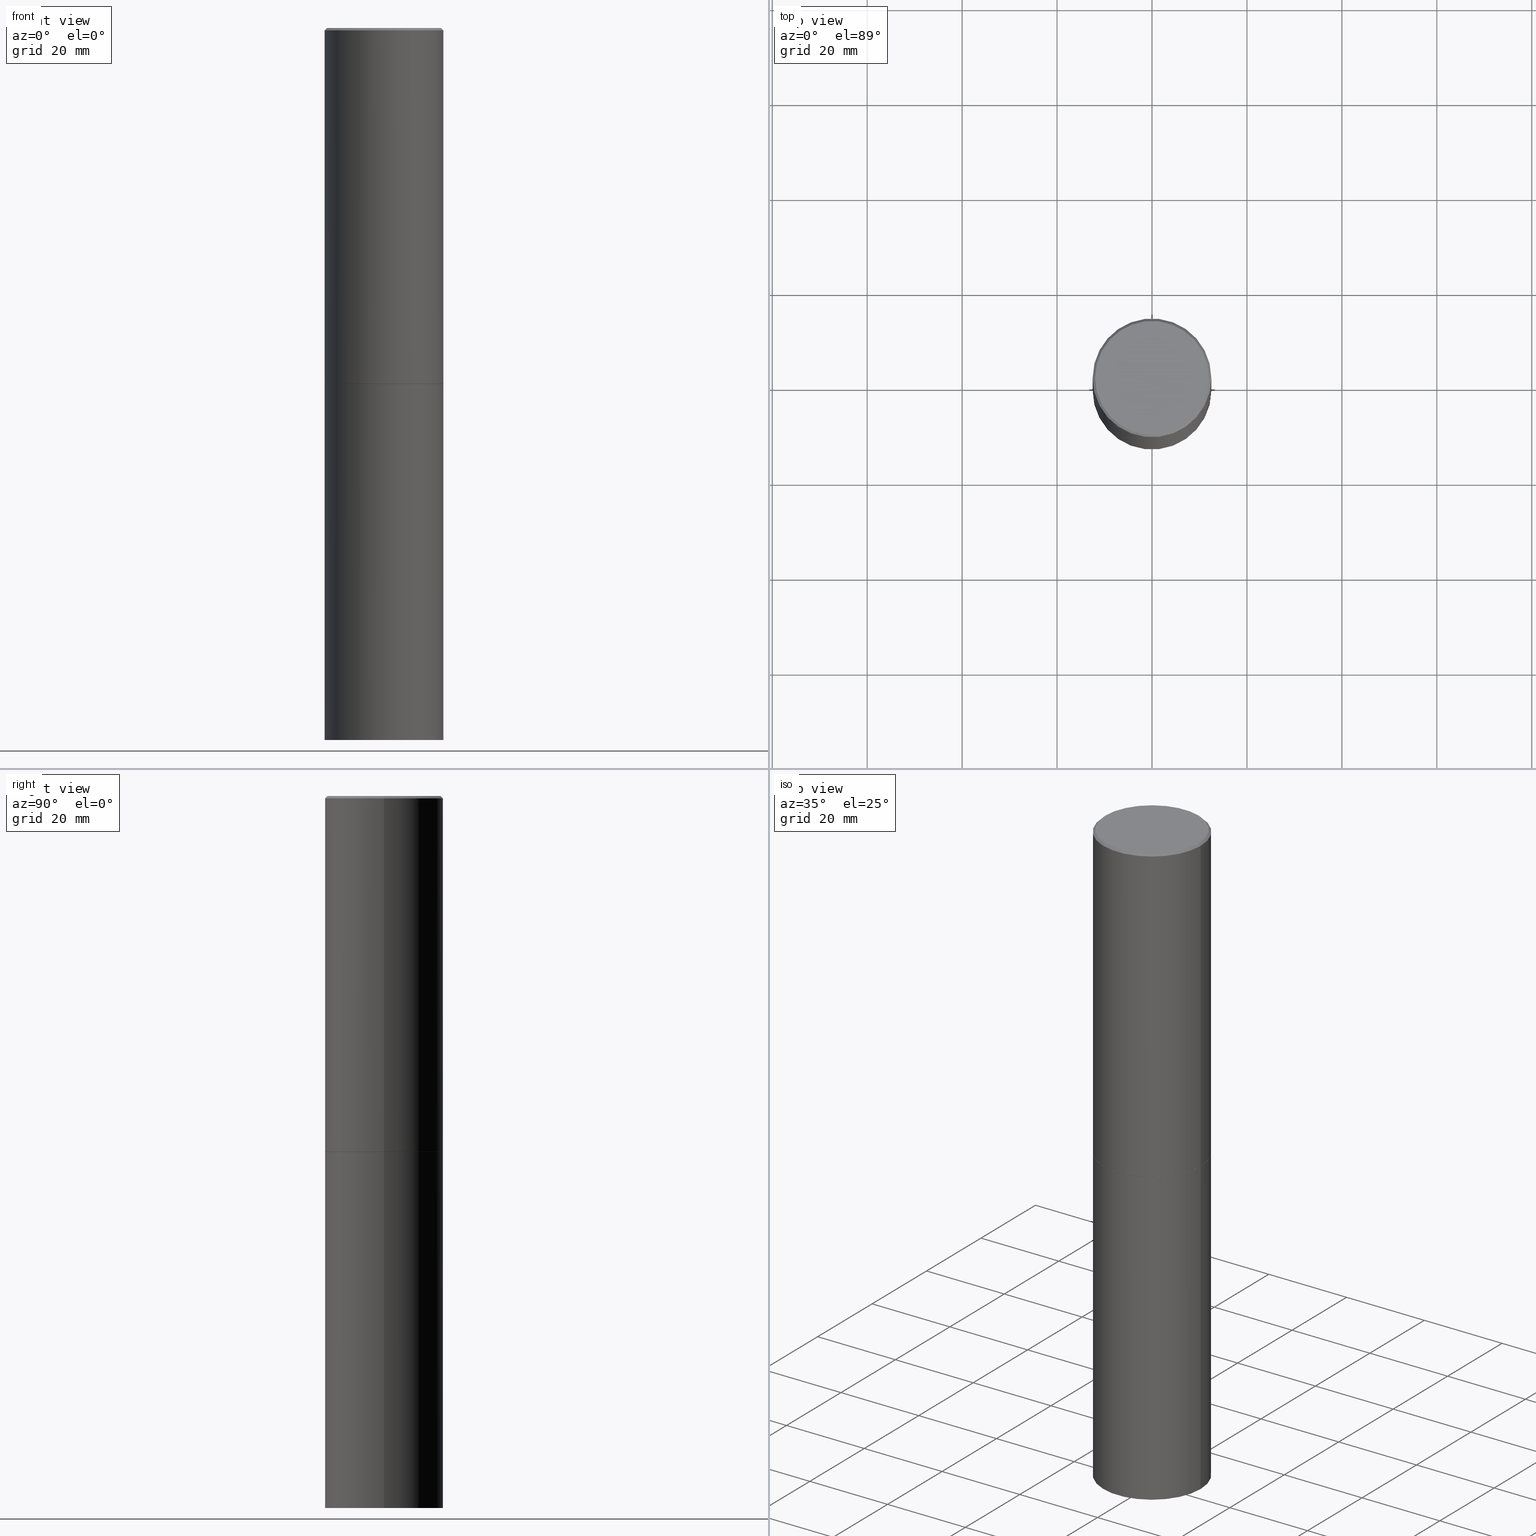
[diagram: canonical four-view strip — front | top / right | iso, engineering-drawing reading convention]
A machine part, canonical four-view strip (front | top / right | iso — engineering-drawing reading convention). The complete STEP part file that produces these views, byte-faithful:
ISO-10303-21;
HEADER;
FILE_DESCRIPTION (( 'STEP AP203' ),
    '1' );
FILE_NAME ('49413.STEP',
    '2024-02-28T19:42:26',
    ( '' ),
    ( '' ),
    'SwSTEP 2.0',
    'SolidWorks 2023',
    '' );
FILE_SCHEMA (( 'CONFIG_CONTROL_DESIGN' ));
ENDSEC;

DATA;
#1 = CARTESIAN_POINT ( 'NONE',  ( 0.4911499999999999755, -1.373897906834776478E-14, -2.952700000000000546 ) ) ;
#2 = AXIS2_PLACEMENT_3D ( 'NONE', #58, #278, #134 ) ;
#3 = DIRECTION ( 'NONE',  ( -2.445468806185136597E-29, 3.491481338843145583E-15, 1.000000000000000000 ) ) ;
#4 = EDGE_CURVE ( 'NONE', #128, #118, #135, .T. ) ;
#5 = DIRECTION ( 'NONE',  ( -2.445468806185136597E-29, 3.491481338843145583E-15, 1.000000000000000000 ) ) ;
#6 = VECTOR ( 'NONE', #357, 39.37007874015748143 ) ;
#7 = AXIS2_PLACEMENT_3D ( 'NONE', #48, #241, #352 ) ;
#8 = APPLICATION_CONTEXT ( 'configuration controlled 3d designs of mechanical parts and assemblies' ) ;
#9 = DIRECTION ( 'NONE',  ( 1.000000000000000000, -6.982962677686264344E-15, 0.000000000000000000 ) ) ;
#10 = PERSON_AND_ORGANIZATION ( #182, #22 ) ;
#11 = CC_DESIGN_DATE_AND_TIME_ASSIGNMENT ( #365, #201, ( #309 ) ) ;
#12 = ORIENTED_EDGE ( 'NONE', *, *, #25, .F. ) ;
#13 = DIRECTION ( 'NONE',  ( -2.445468806185136597E-29, 3.491481338843145583E-15, 1.000000000000000000 ) ) ;
#14 = COORDINATED_UNIVERSAL_TIME_OFFSET ( 5, 0, .BEHIND. ) ;
#15 = VECTOR ( 'NONE', #223, 39.37007874015748143 ) ;
#16 = DIRECTION ( 'NONE',  ( 1.000000000000000000, -6.982962677686265922E-15, 4.876176775795935793E-29 ) ) ;
#17 = PERSON_AND_ORGANIZATION_ROLE ( 'classification_officer' ) ;
#18 = CYLINDRICAL_SURFACE ( 'NONE', #160, 0.4921499999999999764 ) ;
#19 = CC_DESIGN_PERSON_AND_ORGANIZATION_ASSIGNMENT ( #229, #60, ( #309 ) ) ;
#20 =( CONVERSION_BASED_UNIT ( 'INCH', #290 ) LENGTH_UNIT ( ) NAMED_UNIT ( #154 ) );
#21 = CARTESIAN_POINT ( 'NONE',  ( -0.4921499999999999764, -1.690881473276754954E-15, -2.951700000000000212 ) ) ;
#22 = ORGANIZATION ( 'UNSPECIFIED', 'UNSPECIFIED', '' ) ;
#23 = ORIENTED_EDGE ( 'NONE', *, *, #25, .T. ) ;
#24 = FACE_OUTER_BOUND ( 'NONE', #151, .T. ) ;
#25 = EDGE_CURVE ( 'NONE', #348, #356, #341, .T. ) ;
#26 = PERSON_AND_ORGANIZATION ( #182, #22 ) ;
#27 = FACE_OUTER_BOUND ( 'NONE', #103, .T. ) ;
#28 = VERTEX_POINT ( 'NONE', #240 ) ;
#29 = COORDINATED_UNIVERSAL_TIME_OFFSET ( 5, 0, .BEHIND. ) ;
#30 = CARTESIAN_POINT ( 'NONE',  ( 1.444171603492632270E-28, -2.061894304653819197E-14, -5.905499999999999972 ) ) ;
#31 = AXIS2_PLACEMENT_3D ( 'NONE', #313, #310, #137 ) ;
#32 = PERSON_AND_ORGANIZATION ( #182, #22 ) ;
#33 = EDGE_CURVE ( 'NONE', #70, #257, #351, .T. ) ;
#34 = FACE_OUTER_BOUND ( 'NONE', #47, .T. ) ;
#35 = CONICAL_SURFACE ( 'NONE', #83, 0.4921499999999996988, 0.7853981633974469467 ) ;
#36 = AXIS2_PLACEMENT_3D ( 'NONE', #44, #90, #41 ) ;
#37 = CARTESIAN_POINT ( 'NONE',  ( 7.218290275216666916E-29, -1.030580546786331359E-14, -2.951700000000000212 ) ) ;
#38 = ORIENTED_EDGE ( 'NONE', *, *, #4, .F. ) ;
#39 = FACE_OUTER_BOUND ( 'NONE', #295, .T. ) ;
#40 = COORDINATED_UNIVERSAL_TIME_OFFSET ( 5, 0, .BEHIND. ) ;
#41 = DIRECTION ( 'NONE',  ( 1.000000000000000000, -6.982962677686265922E-15, 4.876006802227162976E-29 ) ) ;
#42 = CC_DESIGN_SECURITY_CLASSIFICATION ( #358, ( #174 ) ) ;
#43 = ORIENTED_EDGE ( 'NONE', *, *, #287, .T. ) ;
#44 = CARTESIAN_POINT ( 'NONE',  ( -2.087702828670439639E-46, 2.980686340760894400E-32, 8.537024980200822558E-18 ) ) ;
#45 = EDGE_LOOP ( 'NONE', ( #189, #303 ) ) ;
#46 = DIRECTION ( 'NONE',  ( -1.000000000000000000, 6.982962677686265922E-15, 0.000000000000000000 ) ) ;
#47 = EDGE_LOOP ( 'NONE', ( #316, #274, #343, #166 ) ) ;
#48 = CARTESIAN_POINT ( 'NONE',  ( 7.220735744022853640E-29, -1.030929694920215659E-14, -2.952700000000000546 ) ) ;
#49 = DIRECTION ( 'NONE',  ( -2.438088387897960049E-29, 3.491481338843145188E-15, 1.000000000000000000 ) ) ;
#50 = CIRCLE ( 'NONE', #140, 0.4921499999999999764 ) ;
#51 = EDGE_CURVE ( 'NONE', #28, #356, #55, .T. ) ;
#52 = VECTOR ( 'NONE', #91, 39.37007874015748143 ) ;
#53 = ORIENTED_EDGE ( 'NONE', *, *, #282, .T. ) ;
#54 = EDGE_CURVE ( 'NONE', #163, #348, #326, .T. ) ;
#55 = LINE ( 'NONE', #159, #283 ) ;
#56 = CIRCLE ( 'NONE', #98, 0.4721499999999996255 ) ;
#57 = MECHANICAL_CONTEXT ( 'NONE', #318, 'mechanical' ) ;
#58 = CARTESIAN_POINT ( 'NONE',  ( 7.220735744022853640E-29, -1.030929694920215659E-14, -2.952700000000000546 ) ) ;
#59 = CARTESIAN_POINT ( 'NONE',  ( 4.890937612370299433E-31, -6.982962677686328587E-17, -0.02000000000000010797 ) ) ;
#60 = PERSON_AND_ORGANIZATION_ROLE ( 'creator' ) ;
#61 = CYLINDRICAL_SURFACE ( 'NONE', #31, 0.4921499999999998098 ) ;
#62 = CARTESIAN_POINT ( 'NONE',  ( -0.4721499999999996255, 3.331920641657999252E-15, 8.537024980177643606E-18 ) ) ;
#63 = ADVANCED_FACE ( 'NONE', ( #24 ), #18, .T. ) ;
#64 = DIRECTION ( 'NONE',  ( -1.000000000000000000, 6.982962677686265922E-15, -4.876176775795935793E-29 ) ) ;
#65 = APPROVAL_PERSON_ORGANIZATION ( #270, #193, #141 ) ;
#66 = DIRECTION ( 'NONE',  ( 2.445468806185136597E-29, -3.491481338843145583E-15, -1.000000000000000000 ) ) ;
#67 = ORIENTED_EDGE ( 'NONE', *, *, #87, .T. ) ;
#68 = DIRECTION ( 'NONE',  ( 1.000000000000000000, -6.982962677686265922E-15, 0.000000000000000000 ) ) ;
#69 = CARTESIAN_POINT ( 'NONE',  ( -0.4911499999999999755, -6.819466302516424705E-15, -2.952700000000000546 ) ) ;
#70 = VERTEX_POINT ( 'NONE', #1 ) ;
#71 = ADVANCED_FACE ( 'NONE', ( #34 ), #61, .T. ) ;
#72 = CONICAL_SURFACE ( 'NONE', #170, 0.4911499999999999755, 0.7853981633972775267 ) ;
#73 = EDGE_CURVE ( 'NONE', #347, #28, #56, .T. ) ;
#74 = VERTEX_POINT ( 'NONE', #361 ) ;
#75 = EDGE_CURVE ( 'NONE', #74, #102, #50, .T. ) ;
#76 = AXIS2_PLACEMENT_3D ( 'NONE', #215, #328, #186 ) ;
#77 = EDGE_LOOP ( 'NONE', ( #246, #335, #93, #101 ) ) ;
#78 = ORIENTED_EDGE ( 'NONE', *, *, #117, .T. ) ;
#79 = CARTESIAN_POINT ( 'NONE',  ( 7.220735744022852519E-29, -1.030929694920215502E-14, -2.952700000000000102 ) ) ;
#80 = EDGE_LOOP ( 'NONE', ( #78, #127 ) ) ;
#81 = EDGE_CURVE ( 'NONE', #356, #348, #194, .T. ) ;
#82 = FACE_OUTER_BOUND ( 'NONE', #213, .T. ) ;
#83 = AXIS2_PLACEMENT_3D ( 'NONE', #86, #66, #46 ) ;
#84 = DIRECTION ( 'NONE',  ( 1.000000000000000000, 0.000000000000000000, 0.000000000000000000 ) ) ;
#85 = DIRECTION ( 'NONE',  ( 2.445468806185136597E-29, -3.491481338843145583E-15, -1.000000000000000000 ) ) ;
#86 = CARTESIAN_POINT ( 'NONE',  ( 4.890937612370299433E-31, -6.982962677686328587E-17, -0.02000000000000010797 ) ) ;
#87 = EDGE_CURVE ( 'NONE', #102, #128, #256, .T. ) ;
#88 = PRODUCT ( '49413', '49413', '', ( #57 ) ) ;
#89 = PERSON_AND_ORGANIZATION_ROLE ( 'creator' ) ;
#90 = DIRECTION ( 'NONE',  ( -2.445468806185136597E-29, 3.491481338843145583E-15, 1.000000000000000000 ) ) ;
#91 = DIRECTION ( 'NONE',  ( -0.7071067811864267805, 7.493145998869918709E-15, 0.7071067811866682540 ) ) ;
#92 = DIRECTION ( 'NONE',  ( 1.000000000000000000, -6.982962677686265922E-15, 4.876176775795935793E-29 ) ) ;
#93 = ORIENTED_EDGE ( 'NONE', *, *, #33, .T. ) ;
#94 = DIRECTION ( 'NONE',  ( -0.7071067811865465735, 2.468850131082246805E-15, -0.7071067811865484609 ) ) ;
#95 = CARTESIAN_POINT ( 'NONE',  ( 3.436665081823367957E-15, 0.4921499999999896513, -2.952700000000001435 ) ) ;
#96 = FACE_OUTER_BOUND ( 'NONE', #144, .T. ) ;
#97 = APPROVAL_ROLE ( '' ) ;
#98 = AXIS2_PLACEMENT_3D ( 'NONE', #336, #284, #131 ) ;
#99 = CIRCLE ( 'NONE', #36, 0.4721499999999996255 ) ;
#100 = CONICAL_SURFACE ( 'NONE', #114, 0.4921499999999996988, 0.7853981633974469467 ) ;
#101 = ORIENTED_EDGE ( 'NONE', *, *, #279, .F. ) ;
#102 = VERTEX_POINT ( 'NONE', #339 ) ;
#103 = EDGE_LOOP ( 'NONE', ( #116, #329, #177, #208 ) ) ;
#104 = DIRECTION ( 'NONE',  ( 1.000000000000000000, -6.982962677686265922E-15, 4.876176775795935793E-29 ) ) ;
#105 = DIRECTION ( 'NONE',  ( -2.445468806185136597E-29, 3.491481338843145583E-15, 1.000000000000000000 ) ) ;
#106 = VECTOR ( 'NONE', #94, 39.37007874015748143 ) ;
#107 = ORIENTED_EDGE ( 'NONE', *, *, #133, .F. ) ;
#108 = APPROVAL ( #238, 'UNSPECIFIED' ) ;
#109 = DIRECTION ( 'NONE',  ( -1.000000000000000000, 6.982962677686265922E-15, -4.876176775795935793E-29 ) ) ;
#110 = CLOSED_SHELL ( 'NONE', ( #305, #71, #125, #222, #299, #263, #165, #321 ) ) ;
#111 = LOCAL_TIME ( 14, 42, 26.00000000000000000, #211 ) ;
#112 = APPROVAL_DATE_TIME ( #258, #193 ) ;
#113 = AXIS2_PLACEMENT_3D ( 'NONE', #252, #363, #308 ) ;
#114 = AXIS2_PLACEMENT_3D ( 'NONE', #226, #85, #197 ) ;
#115 = ORIENTED_EDGE ( 'NONE', *, *, #33, .F. ) ;
#116 = ORIENTED_EDGE ( 'NONE', *, *, #255, .F. ) ;
#117 = EDGE_CURVE ( 'NONE', #118, #128, #267, .T. ) ;
#118 = VERTEX_POINT ( 'NONE', #164 ) ;
#119 = ORIENTED_EDGE ( 'NONE', *, *, #206, .T. ) ;
#120 = CC_DESIGN_PERSON_AND_ORGANIZATION_ASSIGNMENT ( #203, #89, ( #174 ) ) ;
#121 = CARTESIAN_POINT ( 'NONE',  ( 0.000000000000000000, 0.000000000000000000, 0.000000000000000000 ) ) ;
#122 = FACE_OUTER_BOUND ( 'NONE', #261, .T. ) ;
#123 = DATE_TIME_ROLE ( 'classification_date' ) ;
#124 = LOCAL_TIME ( 14, 42, 26.00000000000000000, #280 ) ;
#125 = ADVANCED_FACE ( 'NONE', ( #27 ), #35, .T. ) ;
#126 = CARTESIAN_POINT ( 'NONE',  ( 0.4921499999999999764, -3.436665081823295777E-15, 2.399810400207969603E-29 ) ) ;
#127 = ORIENTED_EDGE ( 'NONE', *, *, #4, .T. ) ;
#128 = VERTEX_POINT ( 'NONE', #319 ) ;
#129 = CIRCLE ( 'NONE', #205, 0.4921499999999999764 ) ;
#130 = EDGE_CURVE ( 'NONE', #347, #348, #175, .T. ) ;
#131 = DIRECTION ( 'NONE',  ( 1.000000000000000000, -6.982962677686265922E-15, 4.876006802227162976E-29 ) ) ;
#132 = CALENDAR_DATE ( 2024, 28, 2 ) ;
#133 = EDGE_CURVE ( 'NONE', #257, #163, #331, .T. ) ;
#134 = DIRECTION ( 'NONE',  ( 1.000000000000000000, -6.982962677686264344E-15, 0.000000000000000000 ) ) ;
#135 = CIRCLE ( 'NONE', #209, 0.4921499999999999764 ) ;
#136 = CARTESIAN_POINT ( 'NONE',  ( 0.000000000000000000, 0.000000000000000000, 0.000000000000000000 ) ) ;
#137 = DIRECTION ( 'NONE',  ( 1.000000000000000000, -6.982962677686265922E-15, 4.876176775795935793E-29 ) ) ;
#138 = EDGE_CURVE ( 'NONE', #257, #356, #291, .T. ) ;
#139 = CARTESIAN_POINT ( 'NONE',  ( -0.4911499999999999755, -6.814167848168202303E-15, -2.952700000000000546 ) ) ;
#140 = AXIS2_PLACEMENT_3D ( 'NONE', #30, #359, #227 ) ;
#141 = APPROVAL_ROLE ( '' ) ;
#142 = PERSON_AND_ORGANIZATION_ROLE ( 'design_supplier' ) ;
#143 = ORIENTED_EDGE ( 'NONE', *, *, #117, .F. ) ;
#144 = EDGE_LOOP ( 'NONE', ( #190, #202, #292, #12 ) ) ;
#145 = CC_DESIGN_PERSON_AND_ORGANIZATION_ASSIGNMENT ( #350, #17, ( #358 ) ) ;
#146 = DIRECTION ( 'NONE',  ( 1.000000000000000000, -6.982962677686264344E-15, 0.000000000000000000 ) ) ;
#147 = DIRECTION ( 'NONE',  ( 0.7071067811865465735, -7.319954787623252890E-15, -0.7071067811865484609 ) ) ;
#148 = CARTESIAN_POINT ( 'NONE',  ( -0.4921499999999998098, 3.496936074043331714E-15, -2.420853904668950949E-29 ) ) ;
#149 = ORIENTED_EDGE ( 'NONE', *, *, #282, .F. ) ;
#150 =( NAMED_UNIT ( * ) PLANE_ANGLE_UNIT ( ) SI_UNIT ( $, .RADIAN. ) );
#151 = EDGE_LOOP ( 'NONE', ( #243, #43, #53, #38 ) ) ;
#152 = DIRECTION ( 'NONE',  ( -2.445468806185136597E-29, 3.491481338843145583E-15, 1.000000000000000000 ) ) ;
#153 = DIRECTION ( 'NONE',  ( -2.445468806185136597E-29, 3.491481338843145583E-15, 1.000000000000000000 ) ) ;
#154 = DIMENSIONAL_EXPONENTS ( 1.000000000000000000, 0.000000000000000000, 0.000000000000000000, 0.000000000000000000, 0.000000000000000000, 0.000000000000000000, 0.000000000000000000 ) ;
#155 = MANIFOLD_SOLID_BREP ( 'Body-Move/Copy2[2]', #110 ) ;
#156 = ADVANCED_BREP_SHAPE_REPRESENTATION ( '49413', ( #158, #155, #181 ), #332 ) ;
#157 = DATE_AND_TIME ( #324, #111 ) ;
#158 = MANIFOLD_SOLID_BREP ( 'Body-Move/Copy2[1]', #312 ) ;
#159 = CARTESIAN_POINT ( 'NONE',  ( 0.4921499999999996988, -3.446223716380120377E-15, -0.02000000000000010797 ) ) ;
#160 = AXIS2_PLACEMENT_3D ( 'NONE', #216, #330, #304 ) ;
#161 = ORIENTED_EDGE ( 'NONE', *, *, #130, .T. ) ;
#162 = AXIS2_PLACEMENT_3D ( 'NONE', #171, #153, #146 ) ;
#163 = VERTEX_POINT ( 'NONE', #21 ) ;
#164 = CARTESIAN_POINT ( 'NONE',  ( 0.4921499999999999764, -1.374596203102545079E-14, -2.952700000000000102 ) ) ;
#165 = ADVANCED_FACE ( 'NONE', ( #122 ), #239, .F. ) ;
#166 = ORIENTED_EDGE ( 'NONE', *, *, #138, .F. ) ;
#167 = APPLICATION_PROTOCOL_DEFINITION ( 'international standard', 'config_control_design', 1994, #8 ) ;
#168 = CARTESIAN_POINT ( 'NONE',  ( -0.4921499999999996988, 3.366835455046430506E-15, -0.02000000000000010797 ) ) ;
#169 = AXIS2_PLACEMENT_3D ( 'NONE', #37, #3, #176 ) ;
#170 = AXIS2_PLACEMENT_3D ( 'NONE', #327, #217, #9 ) ;
#171 = CARTESIAN_POINT ( 'NONE',  ( 7.220735744022853640E-29, -1.030929694920215659E-14, -2.952700000000000546 ) ) ;
#172 = CC_DESIGN_PERSON_AND_ORGANIZATION_ASSIGNMENT ( #315, #142, ( #174 ) ) ;
#173 = ORIENTED_EDGE ( 'NONE', *, *, #287, .F. ) ;
#174 = PRODUCT_DEFINITION_FORMATION_WITH_SPECIFIED_SOURCE ( 'ANY', '', #88, .NOT_KNOWN. ) ;
#175 = LINE ( 'NONE', #344, #106 ) ;
#176 = DIRECTION ( 'NONE',  ( 1.000000000000000000, -6.982962677686265922E-15, 0.000000000000000000 ) ) ;
#177 = ORIENTED_EDGE ( 'NONE', *, *, #81, .T. ) ;
#178 =( LENGTH_UNIT ( ) NAMED_UNIT ( * ) SI_UNIT ( $, .METRE. ) );
#179 = DIRECTION ( 'NONE',  ( -2.445468806185136597E-29, 3.491481338843145583E-15, 1.000000000000000000 ) ) ;
#180 = AXIS2_PLACEMENT_3D ( 'NONE', #207, #152, #273 ) ;
#181 = AXIS2_PLACEMENT_3D ( 'NONE', #136, #199, #84 ) ;
#182 = PERSON ( 'UNSPECIFIED', 'UNSPECIFIED', 'UNSPECIFIED', ('UNSPECIFIED'), ('UNSPECIFIED'), ('UNSPECIFIED') ) ;
#183 = DIRECTION ( 'NONE',  ( 1.000000000000000000, -6.982962677686265922E-15, 0.000000000000000000 ) ) ;
#184 = ORIENTED_EDGE ( 'NONE', *, *, #235, .F. ) ;
#185 = PRODUCT_RELATED_PRODUCT_CATEGORY ( 'detail', '', ( #88 ) ) ;
#186 = DIRECTION ( 'NONE',  ( 1.000000000000000000, -6.982962677686265922E-15, 0.000000000000000000 ) ) ;
#187 = CARTESIAN_POINT ( 'NONE',  ( 7.220735744022853640E-29, -1.030929694920215659E-14, -2.952700000000000546 ) ) ;
#188 = PLANE ( 'NONE',  #317 ) ;
#189 = ORIENTED_EDGE ( 'NONE', *, *, #73, .T. ) ;
#190 = ORIENTED_EDGE ( 'NONE', *, *, #54, .F. ) ;
#191 = APPLICATION_PROTOCOL_DEFINITION ( 'international standard', 'config_control_design', 1994, #318 ) ;
#192 = ORIENTED_EDGE ( 'NONE', *, *, #275, .T. ) ;
#193 = APPROVAL ( #285, 'UNSPECIFIED' ) ;
#194 = CIRCLE ( 'NONE', #219, 0.4921499999999996988 ) ;
#195 = CIRCLE ( 'NONE', #76, 0.4921499999999999764 ) ;
#196 = DIRECTION ( 'NONE',  ( -1.000000000000000000, 6.982962677686265922E-15, -4.876176775795935793E-29 ) ) ;
#197 = DIRECTION ( 'NONE',  ( -1.000000000000000000, 6.982962677686265922E-15, 0.000000000000000000 ) ) ;
#198 = CARTESIAN_POINT ( 'NONE',  ( 3.436665081823440533E-15, 0.4921499999999793262, -5.905500000000001748 ) ) ;
#199 = DIRECTION ( 'NONE',  ( 0.000000000000000000, 0.000000000000000000, 1.000000000000000000 ) ) ;
#200 = LOCAL_TIME ( 14, 42, 26.00000000000000000, #14 ) ;
#201 = DATE_TIME_ROLE ( 'creation_date' ) ;
#202 = ORIENTED_EDGE ( 'NONE', *, *, #279, .T. ) ;
#203 = PERSON_AND_ORGANIZATION ( #182, #22 ) ;
#204 = CYLINDRICAL_SURFACE ( 'NONE', #323, 0.4921499999999999764 ) ;
#205 = AXIS2_PLACEMENT_3D ( 'NONE', #296, #13, #68 ) ;
#206 = EDGE_CURVE ( 'NONE', #70, #325, #337, .T. ) ;
#207 = CARTESIAN_POINT ( 'NONE',  ( 4.890937612370299433E-31, -6.982962677686328587E-17, -0.02000000000000010797 ) ) ;
#208 = ORIENTED_EDGE ( 'NONE', *, *, #130, .F. ) ;
#209 = AXIS2_PLACEMENT_3D ( 'NONE', #79, #5, #183 ) ;
#210 = CC_DESIGN_APPROVAL ( #108, ( #358 ) ) ;
#211 = COORDINATED_UNIVERSAL_TIME_OFFSET ( 5, 0, .BEHIND. ) ;
#212 = APPROVAL_DATE_TIME ( #157, #108 ) ;
#213 = EDGE_LOOP ( 'NONE', ( #307, #173 ) ) ;
#214 = FACE_OUTER_BOUND ( 'NONE', #45, .T. ) ;
#215 = CARTESIAN_POINT ( 'NONE',  ( 1.444171603492632270E-28, -2.061894304653819197E-14, -5.905499999999999972 ) ) ;
#216 = CARTESIAN_POINT ( 'NONE',  ( 0.000000000000000000, 0.000000000000000000, 0.000000000000000000 ) ) ;
#217 = DIRECTION ( 'NONE',  ( -2.445468806185136597E-29, 3.491481338843145583E-15, 1.000000000000000000 ) ) ;
#218 = CARTESIAN_POINT ( 'NONE',  ( 0.4921499999999999764, -1.374247054968660936E-14, -2.951700000000000212 ) ) ;
#219 = AXIS2_PLACEMENT_3D ( 'NONE', #59, #105, #231 ) ;
#220 = CC_DESIGN_APPROVAL ( #360, ( #309 ) ) ;
#221 = DIRECTION ( 'NONE',  ( 2.438088387897960049E-29, -3.491481338843145188E-15, -1.000000000000000000 ) ) ;
#222 = ADVANCED_FACE ( 'NONE', ( #250 ), #100, .T. ) ;
#223 = DIRECTION ( 'NONE',  ( -2.445468806185136877E-29, 3.491481338843145188E-15, 1.000000000000000000 ) ) ;
#224 = ORIENTED_EDGE ( 'NONE', *, *, #75, .T. ) ;
#225 = APPROVAL_ROLE ( '' ) ;
#226 = CARTESIAN_POINT ( 'NONE',  ( 4.890937612370299433E-31, -6.982962677686328587E-17, -0.02000000000000010797 ) ) ;
#227 = DIRECTION ( 'NONE',  ( 1.000000000000000000, -6.982962677686265922E-15, 0.000000000000000000 ) ) ;
#228 = CIRCLE ( 'NONE', #162, 0.4911499999999999755 ) ;
#229 = PERSON_AND_ORGANIZATION ( #182, #22 ) ;
#230 = DIRECTION ( 'NONE',  ( 2.438088387897960049E-29, -3.491481338843145188E-15, -1.000000000000000000 ) ) ;
#231 = DIRECTION ( 'NONE',  ( 1.000000000000000000, -6.982962677686265922E-15, 0.000000000000000000 ) ) ;
#232 =( NAMED_UNIT ( * ) SI_UNIT ( $, .STERADIAN. ) SOLID_ANGLE_UNIT ( ) );
#233 = VECTOR ( 'NONE', #298, 39.37007874015748143 ) ;
#234 = ADVANCED_FACE ( 'NONE', ( #39 ), #204, .T. ) ;
#235 = EDGE_CURVE ( 'NONE', #325, #70, #228, .T. ) ;
#236 = CARTESIAN_POINT ( 'NONE',  ( 0.4921499999999998098, -3.436665081823294593E-15, 2.399810400207968762E-29 ) ) ;
#237 = ADVANCED_FACE ( 'NONE', ( #333 ), #188, .F. ) ;
#238 = APPROVAL_STATUS ( 'not_yet_approved' ) ;
#239 = PLANE ( 'NONE',  #260 ) ;
#240 = CARTESIAN_POINT ( 'NONE',  ( 0.4721499999999996255, -3.342703923013973396E-15, 8.537024980224040028E-18 ) ) ;
#241 = DIRECTION ( 'NONE',  ( -2.445468806185136597E-29, 3.491481338843145583E-15, 1.000000000000000000 ) ) ;
#242 = CC_DESIGN_DATE_AND_TIME_ASSIGNMENT ( #264, #123, ( #358 ) ) ;
#243 = ORIENTED_EDGE ( 'NONE', *, *, #87, .F. ) ;
#244 = ORIENTED_EDGE ( 'NONE', *, *, #51, .F. ) ;
#245 = AXIS2_PLACEMENT_3D ( 'NONE', #311, #364, #109 ) ;
#246 = ORIENTED_EDGE ( 'NONE', *, *, #275, .F. ) ;
#247 = ORIENTED_EDGE ( 'NONE', *, *, #206, .F. ) ;
#248 = APPROVAL_STATUS ( 'not_yet_approved' ) ;
#249 = DATE_AND_TIME ( #132, #289 ) ;
#250 = FACE_OUTER_BOUND ( 'NONE', #294, .T. ) ;
#251 = VECTOR ( 'NONE', #271, 39.37007874015748143 ) ;
#252 = CARTESIAN_POINT ( 'NONE',  ( 7.220735744022852519E-29, -1.030929694920215502E-14, -2.952700000000000102 ) ) ;
#253 = CALENDAR_DATE ( 2024, 28, 2 ) ;
#254 = DESIGN_CONTEXT ( 'detailed design', #8, 'design' ) ;
#255 = EDGE_CURVE ( 'NONE', #28, #347, #99, .T. ) ;
#256 = LINE ( 'NONE', #366, #15 ) ;
#257 = VERTEX_POINT ( 'NONE', #218 ) ;
#258 = DATE_AND_TIME ( #340, #262 ) ;
#259 = DIRECTION ( 'NONE',  ( -2.445468806185136597E-29, 3.491481338843145583E-15, 1.000000000000000000 ) ) ;
#260 = AXIS2_PLACEMENT_3D ( 'NONE', #187, #49, #104 ) ;
#261 = EDGE_LOOP ( 'NONE', ( #247, #184 ) ) ;
#262 = LOCAL_TIME ( 14, 42, 26.00000000000000000, #40 ) ;
#263 = ADVANCED_FACE ( 'NONE', ( #355 ), #72, .T. ) ;
#264 = DATE_AND_TIME ( #302, #200 ) ;
#265 = SECURITY_CLASSIFICATION_LEVEL ( 'unclassified' ) ;
#266 = CC_DESIGN_PERSON_AND_ORGANIZATION_ASSIGNMENT ( #32, #277, ( #88 ) ) ;
#267 = CIRCLE ( 'NONE', #113, 0.4921499999999999764 ) ;
#268 = LINE ( 'NONE', #126, #314 ) ;
#269 = CC_DESIGN_APPROVAL ( #193, ( #174 ) ) ;
#270 = PERSON_AND_ORGANIZATION ( #182, #22 ) ;
#271 = DIRECTION ( 'NONE',  ( -2.445468806185136877E-29, 3.491481338843145188E-15, 1.000000000000000000 ) ) ;
#272 = SHAPE_DEFINITION_REPRESENTATION ( #281, #156 ) ;
#273 = DIRECTION ( 'NONE',  ( 1.000000000000000000, -6.982962677686265922E-15, 0.000000000000000000 ) ) ;
#274 = ORIENTED_EDGE ( 'NONE', *, *, #54, .T. ) ;
#275 = EDGE_CURVE ( 'NONE', #325, #163, #320, .T. ) ;
#276 = CONICAL_SURFACE ( 'NONE', #7, 0.4911499999999999755, 0.7853981633972775267 ) ;
#277 = PERSON_AND_ORGANIZATION_ROLE ( 'design_owner' ) ;
#278 = DIRECTION ( 'NONE',  ( -2.445468806185136597E-29, 3.491481338843145583E-15, 1.000000000000000000 ) ) ;
#279 = EDGE_CURVE ( 'NONE', #163, #257, #129, .T. ) ;
#280 = COORDINATED_UNIVERSAL_TIME_OFFSET ( 5, 0, .BEHIND. ) ;
#281 = PRODUCT_DEFINITION_SHAPE ( 'NONE', 'NONE',  #309 ) ;
#282 = EDGE_CURVE ( 'NONE', #74, #118, #268, .T. ) ;
#283 = VECTOR ( 'NONE', #147, 39.37007874015748143 ) ;
#284 = DIRECTION ( 'NONE',  ( -2.445468806185136597E-29, 3.491481338843145583E-15, 1.000000000000000000 ) ) ;
#285 = APPROVAL_STATUS ( 'not_yet_approved' ) ;
#286 = CARTESIAN_POINT ( 'NONE',  ( 0.4921499999999996988, -3.446223716380120377E-15, -0.02000000000000010797 ) ) ;
#287 = EDGE_CURVE ( 'NONE', #102, #74, #195, .T. ) ;
#288 = CARTESIAN_POINT ( 'NONE',  ( 0.000000000000000000, 0.000000000000000000, 0.000000000000000000 ) ) ;
#289 = LOCAL_TIME ( 14, 42, 26.00000000000000000, #29 ) ;
#290 = LENGTH_MEASURE_WITH_UNIT ( LENGTH_MEASURE( 0.02539999999999999897 ), #178 );
#291 = LINE ( 'NONE', #236, #6 ) ;
#292 = ORIENTED_EDGE ( 'NONE', *, *, #138, .T. ) ;
#293 = UNCERTAINTY_MEASURE_WITH_UNIT (LENGTH_MEASURE( 1.000000000000000082E-05 ), #20, 'distance_accuracy_value', 'NONE');
#294 = EDGE_LOOP ( 'NONE', ( #244, #354, #161, #23 ) ) ;
#295 = EDGE_LOOP ( 'NONE', ( #224, #67, #143, #149 ) ) ;
#296 = CARTESIAN_POINT ( 'NONE',  ( 7.218290275216666916E-29, -1.030580546786331359E-14, -2.951700000000000212 ) ) ;
#297 = FACE_OUTER_BOUND ( 'NONE', #334, .T. ) ;
#298 = DIRECTION ( 'NONE',  ( 0.7071067811864267805, -2.468850131080992517E-15, 0.7071067811866682540 ) ) ;
#299 = ADVANCED_FACE ( 'NONE', ( #96 ), #322, .T. ) ;
#300 = PLANE ( 'NONE',  #245 ) ;
#301 = AXIS2_PLACEMENT_3D ( 'NONE', #121, #179, #16 ) ;
#302 = CALENDAR_DATE ( 2024, 28, 2 ) ;
#303 = ORIENTED_EDGE ( 'NONE', *, *, #255, .T. ) ;
#304 = DIRECTION ( 'NONE',  ( 1.000000000000000000, -6.982962677686265922E-15, 4.876176775795935793E-29 ) ) ;
#305 = ADVANCED_FACE ( 'NONE', ( #297 ), #276, .T. ) ;
#306 = CARTESIAN_POINT ( 'NONE',  ( 0.4911499999999999755, -1.373897906834776478E-14, -2.952700000000000546 ) ) ;
#307 = ORIENTED_EDGE ( 'NONE', *, *, #75, .F. ) ;
#308 = DIRECTION ( 'NONE',  ( 1.000000000000000000, -6.982962677686265922E-15, 0.000000000000000000 ) ) ;
#309 = PRODUCT_DEFINITION ( 'UNKNOWN', '', #174, #254 ) ;
#310 = DIRECTION ( 'NONE',  ( -2.445468806185136597E-29, 3.491481338843145583E-15, 1.000000000000000000 ) ) ;
#311 = CARTESIAN_POINT ( 'NONE',  ( 3.297005828269567997E-15, 0.4721499999999996255, -1.644234401644689488E-15 ) ) ;
#312 = CLOSED_SHELL ( 'NONE', ( #234, #345, #237, #63 ) ) ;
#313 = CARTESIAN_POINT ( 'NONE',  ( 0.000000000000000000, 0.000000000000000000, 0.000000000000000000 ) ) ;
#314 = VECTOR ( 'NONE', #353, 39.37007874015748143 ) ;
#315 = PERSON_AND_ORGANIZATION ( #182, #22 ) ;
#316 = ORIENTED_EDGE ( 'NONE', *, *, #133, .T. ) ;
#317 = AXIS2_PLACEMENT_3D ( 'NONE', #95, #221, #64 ) ;
#318 = APPLICATION_CONTEXT ( 'configuration controlled 3d designs of mechanical parts and assemblies' ) ;
#319 = CARTESIAN_POINT ( 'NONE',  ( -0.4921499999999999764, -1.196718392382684217E-14, -2.952700000000000102 ) ) ;
#320 = LINE ( 'NONE', #69, #52 ) ;
#321 = ADVANCED_FACE ( 'NONE', ( #214 ), #300, .F. ) ;
#322 = CYLINDRICAL_SURFACE ( 'NONE', #301, 0.4921499999999998098 ) ;
#323 = AXIS2_PLACEMENT_3D ( 'NONE', #288, #259, #92 ) ;
#324 = CALENDAR_DATE ( 2024, 28, 2 ) ;
#325 = VERTEX_POINT ( 'NONE', #139 ) ;
#326 = LINE ( 'NONE', #148, #251 ) ;
#327 = CARTESIAN_POINT ( 'NONE',  ( 7.220735744022853640E-29, -1.030929694920215659E-14, -2.952700000000000546 ) ) ;
#328 = DIRECTION ( 'NONE',  ( -2.445468806185136597E-29, 3.491481338843145583E-15, 1.000000000000000000 ) ) ;
#329 = ORIENTED_EDGE ( 'NONE', *, *, #51, .T. ) ;
#330 = DIRECTION ( 'NONE',  ( -2.445468806185136597E-29, 3.491481338843145583E-15, 1.000000000000000000 ) ) ;
#331 = CIRCLE ( 'NONE', #169, 0.4921499999999999764 ) ;
#332 =( GEOMETRIC_REPRESENTATION_CONTEXT ( 3 ) GLOBAL_UNCERTAINTY_ASSIGNED_CONTEXT ( ( #293 ) ) GLOBAL_UNIT_ASSIGNED_CONTEXT ( ( #20, #150, #232 ) ) REPRESENTATION_CONTEXT ( 'NONE', 'WORKASPACE' ) );
#333 = FACE_OUTER_BOUND ( 'NONE', #80, .T. ) ;
#334 = EDGE_LOOP ( 'NONE', ( #119, #192, #107, #115 ) ) ;
#335 = ORIENTED_EDGE ( 'NONE', *, *, #235, .T. ) ;
#336 = CARTESIAN_POINT ( 'NONE',  ( -2.087702828670439639E-46, 2.980686340760894400E-32, 8.537024980200822558E-18 ) ) ;
#337 = CIRCLE ( 'NONE', #2, 0.4911499999999999755 ) ;
#338 = PLANE ( 'NONE',  #342 ) ;
#339 = CARTESIAN_POINT ( 'NONE',  ( -0.4921499999999999764, -1.196718392382684217E-14, -5.905499999999999972 ) ) ;
#340 = CALENDAR_DATE ( 2024, 28, 2 ) ;
#341 = CIRCLE ( 'NONE', #180, 0.4921499999999996988 ) ;
#342 = AXIS2_PLACEMENT_3D ( 'NONE', #198, #230, #196 ) ;
#343 = ORIENTED_EDGE ( 'NONE', *, *, #81, .F. ) ;
#344 = CARTESIAN_POINT ( 'NONE',  ( -0.4921499999999996988, 3.366835455046430506E-15, -0.02000000000000010797 ) ) ;
#345 = ADVANCED_FACE ( 'NONE', ( #82 ), #338, .T. ) ;
#346 = APPROVAL_PERSON_ORGANIZATION ( #10, #108, #97 ) ;
#347 = VERTEX_POINT ( 'NONE', #62 ) ;
#348 = VERTEX_POINT ( 'NONE', #168 ) ;
#349 = APPROVAL_PERSON_ORGANIZATION ( #26, #360, #225 ) ;
#350 = PERSON_AND_ORGANIZATION ( #182, #22 ) ;
#351 = LINE ( 'NONE', #306, #233 ) ;
#352 = DIRECTION ( 'NONE',  ( 1.000000000000000000, -6.982962677686264344E-15, 0.000000000000000000 ) ) ;
#353 = DIRECTION ( 'NONE',  ( -2.445468806185136877E-29, 3.491481338843145188E-15, 1.000000000000000000 ) ) ;
#354 = ORIENTED_EDGE ( 'NONE', *, *, #73, .F. ) ;
#355 = FACE_OUTER_BOUND ( 'NONE', #77, .T. ) ;
#356 = VERTEX_POINT ( 'NONE', #286 ) ;
#357 = DIRECTION ( 'NONE',  ( -2.445468806185136877E-29, 3.491481338843145188E-15, 1.000000000000000000 ) ) ;
#358 = SECURITY_CLASSIFICATION ( '', '', #265 ) ;
#359 = DIRECTION ( 'NONE',  ( -2.445468806185136597E-29, 3.491481338843145583E-15, 1.000000000000000000 ) ) ;
#360 = APPROVAL ( #248, 'UNSPECIFIED' ) ;
#361 = CARTESIAN_POINT ( 'NONE',  ( 0.4921499999999999764, -2.405560812836148932E-14, -5.905499999999999972 ) ) ;
#362 = APPROVAL_DATE_TIME ( #249, #360 ) ;
#363 = DIRECTION ( 'NONE',  ( -2.445468806185136597E-29, 3.491481338843145583E-15, 1.000000000000000000 ) ) ;
#364 = DIRECTION ( 'NONE',  ( 2.438088387897960049E-29, -3.491481338843145188E-15, -1.000000000000000000 ) ) ;
#365 = DATE_AND_TIME ( #253, #124 ) ;
#366 = CARTESIAN_POINT ( 'NONE',  ( -0.4921499999999999764, 3.496936074043332897E-15, -2.420853904668951509E-29 ) ) ;
ENDSEC;
END-ISO-10303-21;
